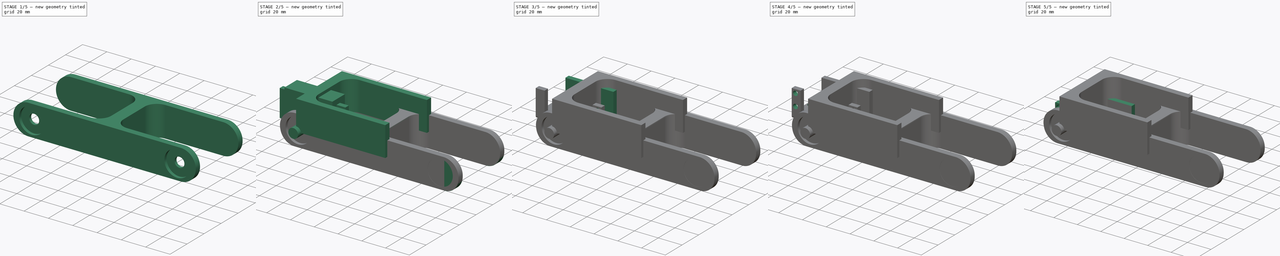
[diagram: build sequence overview — one tinted view per stage of 5, left to right]
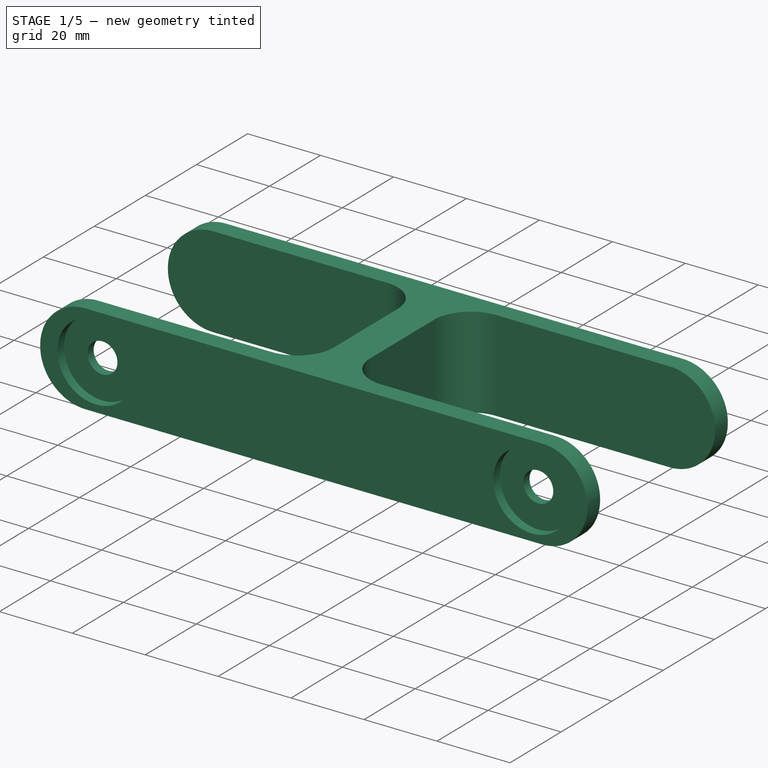
[diagram: stage 1 of 5 — iso view after this stage's code; geometry added in this stage tinted green]
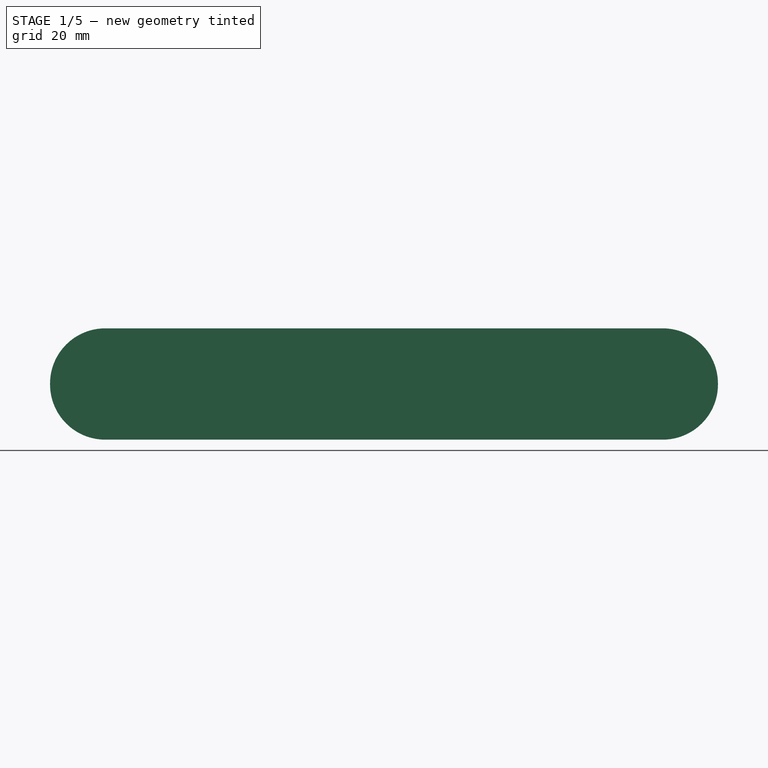
[diagram: stage 1 of 5 — front view after this stage's code; geometry added in this stage tinted green]
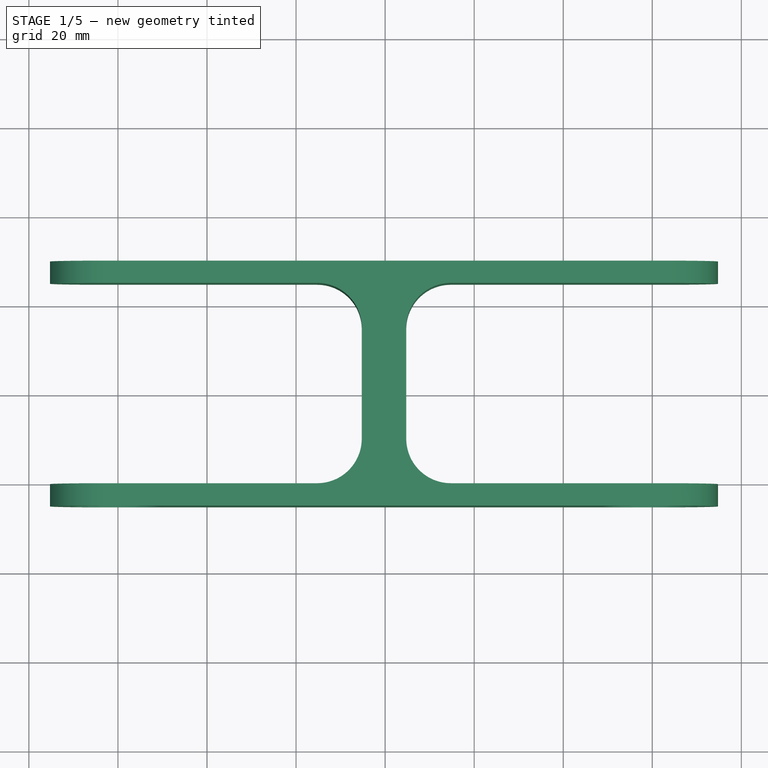
[diagram: stage 1 of 5 — top view after this stage's code; geometry added in this stage tinted green]
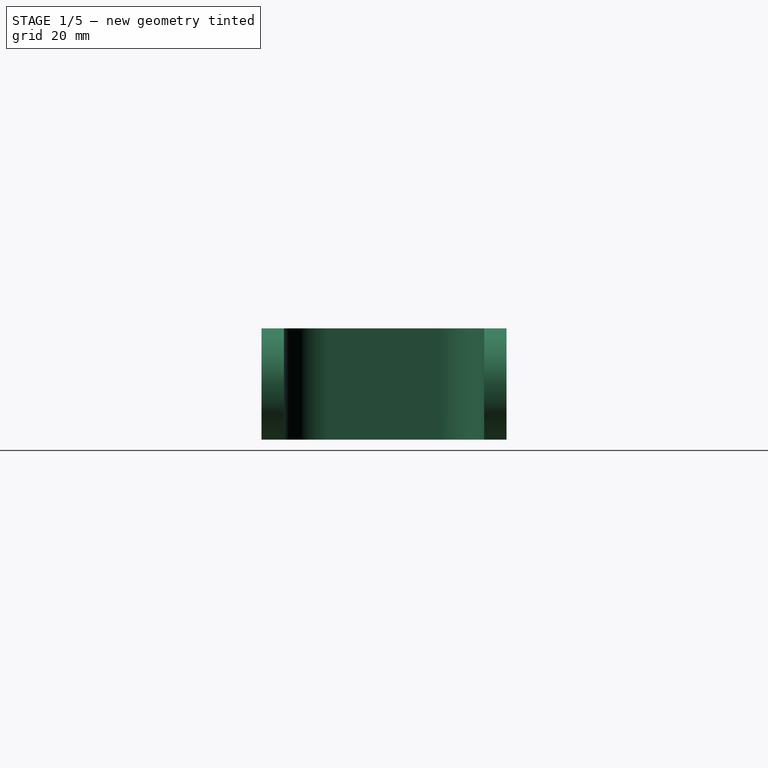
[diagram: stage 1 of 5 — right view after this stage's code; geometry added in this stage tinted green]
FCSTD DOCUMENT  (FreeCAD 0.16R6706 (Git))
Label: soporte1
License: CreativeCommons Attribution-ShareAlike
LicenseURL: http://creativecommons.org/licenses/by-sa/4.0/
objects: Part::Cut×12, Part::Cylinder×12, Part::Feature×7, Part::Fillet×6, Sketcher::SketchObject×5, PartDesign::Pad×5, Part::MultiFuse×4, Part::Part2DObjectPython×2, Part::Box×1, App::FeaturePython×1, Part::Mirroring×1
note: 60 computed .brp shape members not serialized (recipe doc carries the construction recipe); baked Part::Feature solids carry a one-line shape summary decoded from their .brp

FEATURE [Part::Feature] Cut023001  label="pieza1v002"
  Placement = pos=(-30,-3,0) rot=(0,0,1;0rad)
  shape: bbox 55.26 x 29 x 23 mm, 31 faces (baked)
FEATURE [Part::Feature] Cut023002  label="Futaba-3003-body-base002"
  Placement = pos=(-30,14,10) rot=(0,0.707107,-0.707107;3.14159rad)
  shape: bbox 55.26 x 40.28 x 20 mm, 242 faces (baked)
FEATURE [Part::Feature] Fillet006  label="Horm-round1"
  Placement = pos=(-40.1,-22.6,10) rot=(1,0,0;3.14159rad)
  shape: bbox 21 x 6.2 x 21 mm, 65 faces (baked)
FEATURE [Part::Feature] Fillet007  label="Horm-round2"
  Placement = pos=(0,-19,0) rot=(1,0,0;3.14159rad)
  shape: bbox 21 x 6.2 x 21 mm, 65 faces (baked)
FEATURE [Part::Cylinder] Cylinder016  label="Cilindro016"
  Angle = 360
  Height = 10
  Placement = pos=(0,-22.5,0) rot=(1,0,0;1.5708rad)
  Radius = 10.55
FEATURE [Part::Cylinder] Cylinder018  label="Cilindro018"
  Angle = 360
  Height = 10
  Placement = pos=(0,-14,0) rot=(1,0,0;1.5708rad)
  Radius = 4.1
FEATURE [Part::Part2DObjectPython] Line  # Draft 2D object (typed FeaturePython)
  ChamferSize = 0
  Closed = false
  End = (59.8418,-25.0022,12.0661)
  FilletRadius = 0
  Length = 55
  MakeFace = true
  Points = (2) [(59.8418,29.9978,12.0661),(59.8418,-25.0022,12.0661)]
  Start = (59.8418,29.9978,12.0661)
  Subdivisions = 0
FEATURE [Part::Part2DObjectPython] Line001  # Draft 2D object (typed FeaturePython)
  ChamferSize = 0
  Closed = false
  End = (59.8418,29.9978,-12.9339)
  FilletRadius = 0
  Length = 25
  MakeFace = true
  Points = (2) [(59.8418,29.9978,12.0661),(59.8418,29.9978,-12.9339)]
  Start = (59.8418,29.9978,12.0661)
  Subdivisions = 0
FEATURE [App::FeaturePython] Dimension  # Draft dimension (typed FeaturePython)
  Dimline = (57.5705,29.9978,33.8714)
  Direction = (0,0,0)
  Distance = 59.9771
  End = (59.8418,29.9978,-0.433897)
  Normal = (0,1,0)
  Start = (0,34,0)
FEATURE [Sketcher::SketchObject] Sketch005
  Placement = pos=(0,0,12.5) rot=(0,1,0;3.14159rad)
  sketch-geometry (10):
    g0: LineSegment StartX=-59.7494 StartY=29.9083 StartZ=0 EndX=-59.7494 EndY=-25.0917 EndZ=0
    g1: LineSegment StartX=-59.7494 StartY=-25.0917 StartZ=0 EndX=15.2506 EndY=-25.0917 EndZ=0
    g2: LineSegment StartX=15.2506 StartY=-25.0917 StartZ=0 EndX=15.2506 EndY=-20.0917 EndZ=0
    g3: LineSegment StartX=15.2506 StartY=-20.0917 StartZ=0 EndX=-44.7494 EndY=-20.0917 EndZ=0
    g4: LineSegment StartX=-54.7494 StartY=-10.0917 StartZ=0 EndX=-54.7494 EndY=14.9083 EndZ=0
    g5: LineSegment StartX=-44.7494 StartY=24.9083 StartZ=0 EndX=15.2506 EndY=24.9083 EndZ=0
    g6: LineSegment StartX=15.2506 StartY=24.9083 StartZ=0 EndX=15.2506 EndY=29.9083 EndZ=0
    g7: LineSegment StartX=15.2506 StartY=29.9083 StartZ=0 EndX=-59.7494 EndY=29.9083 EndZ=0
    g8: ArcOfCircle CenterX=-44.7494 CenterY=14.9083 CenterZ=0 NormalX=0 NormalY=0 NormalZ=1 Radius=10 StartAngle=1.5708 EndAngle=3.14159
    g9: ArcOfCircle CenterX=-44.7494 CenterY=-10.0917 CenterZ=0 NormalX=0 NormalY=0 NormalZ=1 Radius=10 StartAngle=3.14159 EndAngle=4.71239
  constraints (27):
    c: Vertical(g0)
    c: Coincident(g0,g1)
    c: Horizontal(g1)
    c: Coincident(g1,g2)
    c: Vertical(g2)
    c: Coincident(g2,g3)
    c: Horizontal(g3)
    c: Vertical(g4)
    c: Horizontal(g5)
    c: Coincident(g5,g6)
    c: Vertical(g6)
    c: Coincident(g6,g7)
    c: Coincident(g7,g0)
    c: Horizontal(g7)
    c: Equal(g7,g1)
    c: Equal(g6,g2)
    c: DistanceY(g6,g6) = 5
    c: DistanceX(g7,g7) = 75
    c: Tangent(g4,g8) = 1.5708
    c: Tangent(g5,g8) = 1.5708
    c: Tangent(g4,g9) = 1.5708
    c: Tangent(g3,g9) = 1.5708
    c: DistanceY(g2,g5) = 45
    c: Equal(g8,g9)
    c: Radius(g8) = 10
    c: DistanceX(g0,g4) = 5
    c: DistanceY(g0,g-1) = 25.0917
FEATURE [Part::MultiFuse] Fusion002  label="Taladro-horm001"
  Shapes = -> [Cylinder016,Cylinder018]
FEATURE [PartDesign::Pad] Pad005
  Length = 25
  Length2 = 100
  Placement = pos=(0,0,12.5) rot=(0,1,0;3.14159rad)
  Sketch = -> Sketch005
  Type = 0
FEATURE [Part::Fillet] Fillet008
  Base = -> Pad005
  Edges = 4 edges r=12.4: [Edge6,Edge7,Edge18,Edge19]
FEATURE [Part::Cut] Cut023004
  Base = -> Fillet008
  Tool = -> Fusion002
FEATURE [Part::Feature] Cut023004001  label="Cut023005"
  shape: bbox 75 x 55 x 25 mm, 19 faces (baked)
FEATURE [Part::Mirroring] Part__Mirroring  label="Cut023005 (Mirror #1)"
  Base = (0,2.41,0)
  Normal = (1,0,-1.19209e-07)
  Placement = pos=(119.5,0,0) rot=(0,0,1;0rad)
  Source = -> Cut023004001
FEATURE [Part::MultiFuse] Fusion003
  Shapes = -> [Cut023004001,Part__Mirroring]
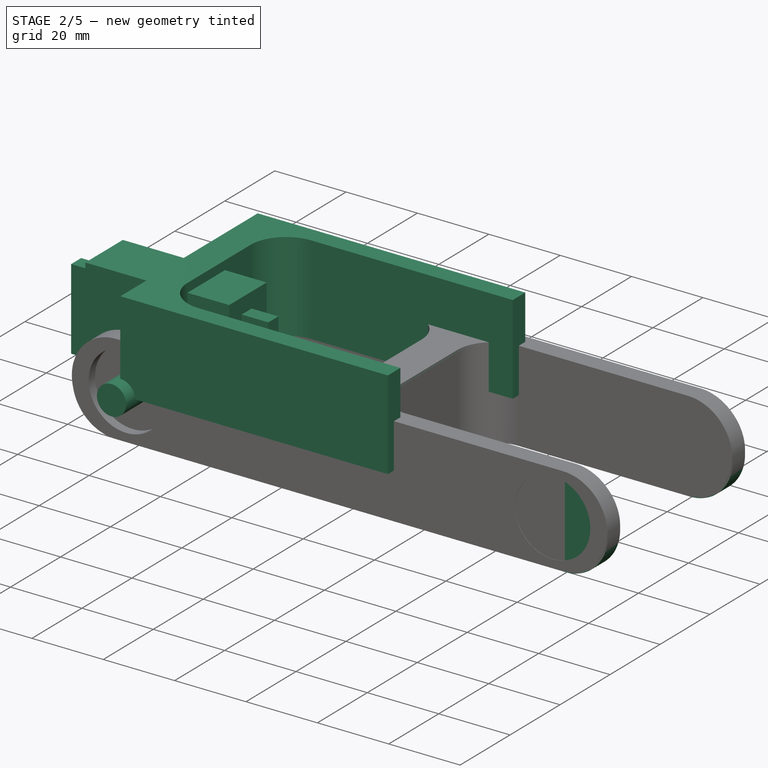
[diagram: stage 2 of 5 — iso view after this stage's code; geometry added in this stage tinted green]
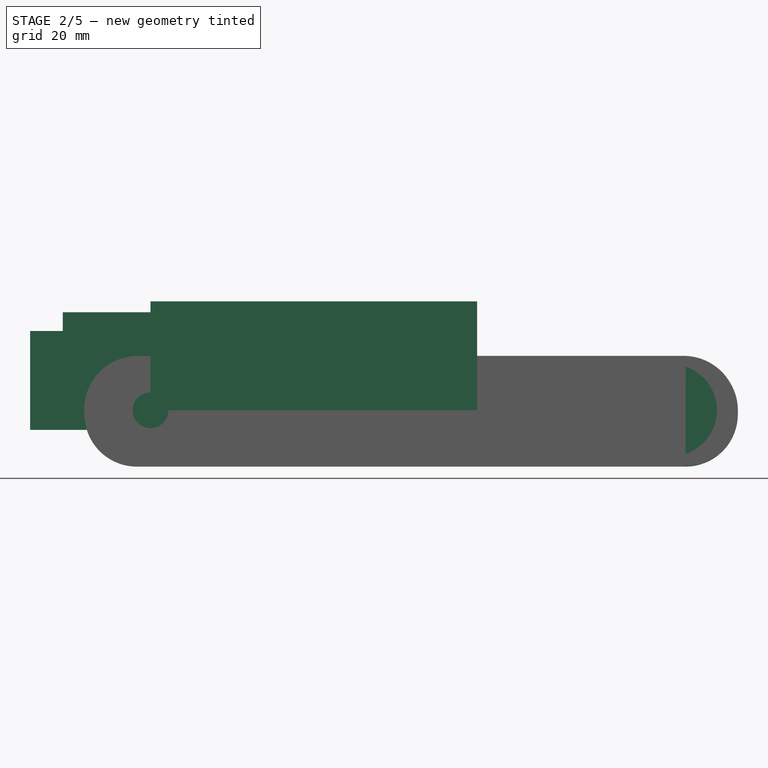
[diagram: stage 2 of 5 — front view after this stage's code; geometry added in this stage tinted green]
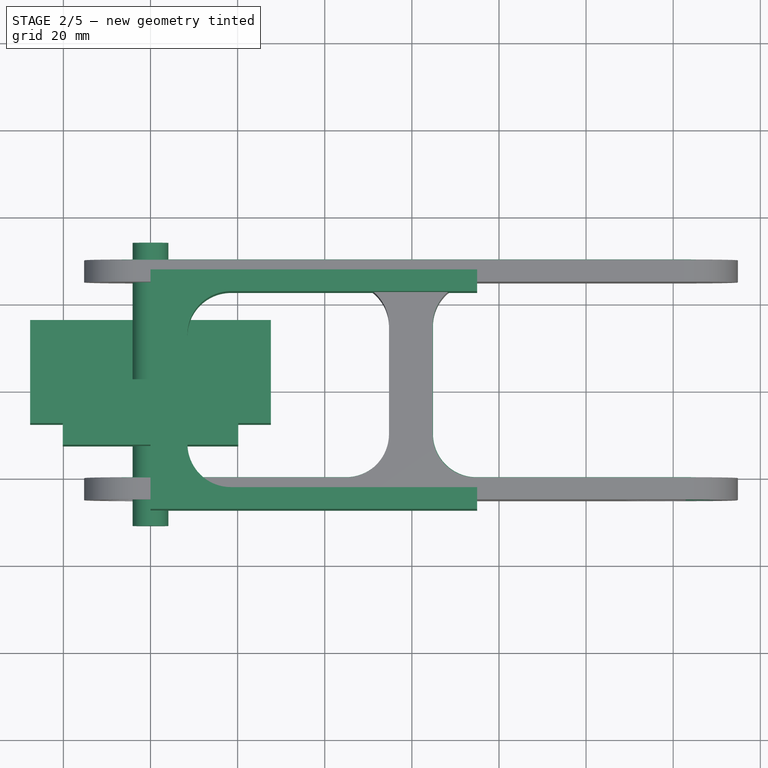
[diagram: stage 2 of 5 — top view after this stage's code; geometry added in this stage tinted green]
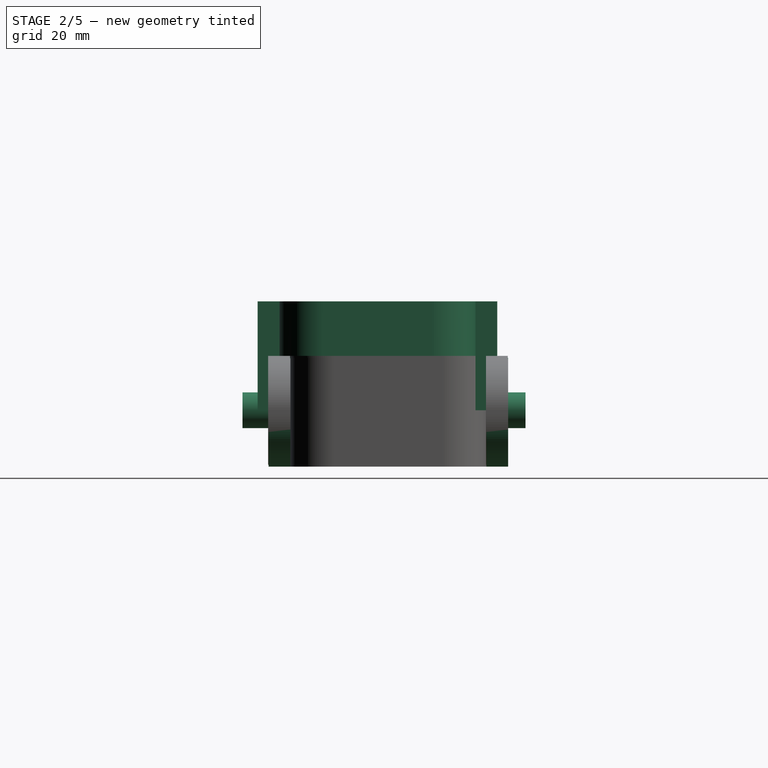
[diagram: stage 2 of 5 — right view after this stage's code; geometry added in this stage tinted green]
FEATURE [Sketcher::SketchObject] Sketch003
  Placement = pos=(-27.63,0,0) rot=(0.57735,0.57735,0.57735;2.0944rad)
  sketch-geometry (6):
    g0: LineSegment StartX=-7.7 StartY=-4.5 StartZ=0 EndX=16.3 EndY=-4.5 EndZ=0
    g1: LineSegment StartX=16.3 StartY=-4.5 StartZ=0 EndX=16.3 EndY=-0.5 EndZ=0
    g2: LineSegment StartX=16.3 StartY=-0.5 StartZ=0 EndX=-3.7 EndY=-0.5 EndZ=0
    g3: LineSegment StartX=-3.7 StartY=-0.5 StartZ=0 EndX=-3.7 EndY=18.2 EndZ=0
    g4: LineSegment StartX=-3.7 StartY=18.2 StartZ=0 EndX=-7.7 EndY=18.2 EndZ=0
    g5: LineSegment StartX=-7.7 StartY=18.2 StartZ=0 EndX=-7.7 EndY=-4.5 EndZ=0
  constraints (18):
    c: Coincident(g0,g1)
    c: Coincident(g1,g2)
    c: Coincident(g2,g3)
    c: Coincident(g3,g4)
    c: Coincident(g4,g5)
    c: Coincident(g5,g0)
    c: Horizontal(g0)
    c: Horizontal(g2)
    c: Horizontal(g4)
    c: Vertical(g5)
    c: Vertical(g3)
    c: Vertical(g1)
    c: Equal(g4,g1)
    c: DistanceX(g4,g4) = 4
    c: DistanceX(g0,g-1) = 7.7
    c: DistanceY(g1,g-1) = 0.5
    c: DistanceY(g5,g5) = 22.7
    c: DistanceX(g0,g0) = 24
FEATURE [PartDesign::Pad] Pad003
  Length = 55.26
  Length2 = 100
  Placement = pos=(-27.63,0,0) rot=(0.57735,0.57735,0.57735;2.0944rad)
  Sketch = -> Sketch003
  Type = 0
FEATURE [Part::Box] Box  label="Cubo"
  Height = 25
  Length = 40.3
  Placement = pos=(-20.15,-12.7,-2.5) rot=(0,0,1;0rad)
  Width = 15
FEATURE [Sketcher::SketchObject] Sketch
  sketch-geometry (17):
    g0: LineSegment StartX=-25 StartY=-30 StartZ=0 EndX=-25 EndY=-25 EndZ=0
    g1: LineSegment StartX=-25 StartY=-25 StartZ=0 EndX=35 EndY=-25 EndZ=0
    g2: LineSegment StartX=45 StartY=-15 StartZ=0 EndX=45 EndY=10 EndZ=0
    g3: LineSegment StartX=35 StartY=20 StartZ=0 EndX=-25 EndY=20 EndZ=0
    g4: LineSegment StartX=-25 StartY=20 StartZ=0 EndX=-25 EndY=25 EndZ=0
    g5: LineSegment StartX=-25 StartY=25 StartZ=0 EndX=125 EndY=25 EndZ=0
    g6: LineSegment StartX=125 StartY=25 StartZ=0 EndX=125 EndY=20 EndZ=0
    g7: LineSegment StartX=125 StartY=20 StartZ=0 EndX=65 EndY=20 EndZ=0
    g8: LineSegment StartX=55 StartY=10 StartZ=0 EndX=55 EndY=-15 EndZ=0
    g9: LineSegment StartX=65 StartY=-25 StartZ=0 EndX=125 EndY=-25 EndZ=0
    g10: LineSegment StartX=125 StartY=-25 StartZ=0 EndX=125 EndY=-30 EndZ=0
    g11: LineSegment StartX=125 StartY=-30 StartZ=0 EndX=-25 EndY=-30 EndZ=0
    g12: LineSegment [constr] StartX=50 StartY=25 StartZ=0 EndX=50 EndY=-30 EndZ=0
    g13: ArcOfCircle CenterX=35 CenterY=10 CenterZ=0 NormalX=0 NormalY=0 NormalZ=1 Radius=10 StartAngle=0 EndAngle=1.5708
    g14: ArcOfCircle CenterX=65 CenterY=10 CenterZ=0 NormalX=0 NormalY=0 NormalZ=1 Radius=10 StartAngle=1.5708 EndAngle=3.14159
    g15: ArcOfCircle CenterX=35 CenterY=-15 CenterZ=0 NormalX=0 NormalY=0 NormalZ=1 Radius=10 StartAngle=4.71239 EndAngle=6.28319
    g16: ArcOfCircle CenterX=65 CenterY=-15 CenterZ=0 NormalX=0 NormalY=0 NormalZ=1 Radius=10 StartAngle=3.14159 EndAngle=4.71239
  constraints (48):
    c: Coincident(g0,g1)
    c: Coincident(g3,g4)
    c: Coincident(g4,g5)
    c: Coincident(g5,g6)
    c: Coincident(g6,g7)
    c: Coincident(g9,g10)
    c: Coincident(g10,g11)
    c: Coincident(g11,g0)
    c: Horizontal(g9)
    c: Horizontal(g1)
    c: Horizontal(g7)
    c: Horizontal(g5)
    c: Horizontal(g3)
    c: Horizontal(g11)
    c: Vertical(g4)
    c: Vertical(g2)
    c: Vertical(g8)
    c: Vertical(g6)
    c: Vertical(g10)
    c: Vertical(g0)
    c: Equal(g1,g3)
    c: Equal(g3,g7)
    c: Equal(g7,g9)
    c: Equal(g4,g6)
    c: Equal(g6,g10)
    c: Equal(g10,g0)
    c: DistanceX(g5,g5) = 150
    c: DistanceY(g0,g0) = 5
    c: DistanceX(g3,g-1) = 25
    c: DistanceY(g-1,g3) = 20
    c: Vertical(g12)
    c: DistanceX(g12,g5) = 75
    c: Tangent(g3,g13) = -1.5708
    c: Tangent(g2,g13) = -1.5708
    c: Tangent(g8,g14) = -1.5708
    c: Tangent(g7,g14) = -1.5708
    c: Tangent(g1,g15) = -1.5708
    c: Tangent(g2,g15) = -1.5708
    c: Tangent(g8,g16) = -1.5708
    c: Tangent(g9,g16) = -1.5708
    c: Equal(g13,g14)
    c: Equal(g14,g15)
    c: Equal(g15,g16)
    c: DistanceX(g2,g8) = 10
    c: Radius(g13) = 10
    c: DistanceY(g0,g3) = 45
    c: PointOnObject(g12,g11)
    c: PointOnObject(g12,g5)
FEATURE [PartDesign::Pad] Pad
  Length = 25
  Length2 = 100
  Sketch = -> Sketch
  Type = 0
FEATURE [Part::Fillet] Fillet004  label="pieza2v1"
  Base = -> Pad
  Edges = 8 edges r=12: [Edge3,Edge4,Edge21,Edge22,Edge27,Edge28,Edge45,Edge46]
  Placement = pos=(9.84181,4.99779,-12.9339) rot=(0,0,1;0rad)
FEATURE [PartDesign::Pad] Pad004
  Length = 25
  Length2 = 100
  Sketch = -> Sketch004
  Type = 0
FEATURE [Part::MultiFuse] Fusion001  label="Taladro-horm"
  Shapes = -> [Cylinder016,Cylinder018]
FEATURE [Part::Cut] Cut023003
  Base = -> Fillet004
  Tool = -> Fusion001
FEATURE [Part::Cylinder] Cylinder019  label="Cilindro019"
  Angle = 360
  Height = 65
  Placement = pos=(0,34,0) rot=(1,0,0;1.5708rad)
  Radius = 4.1
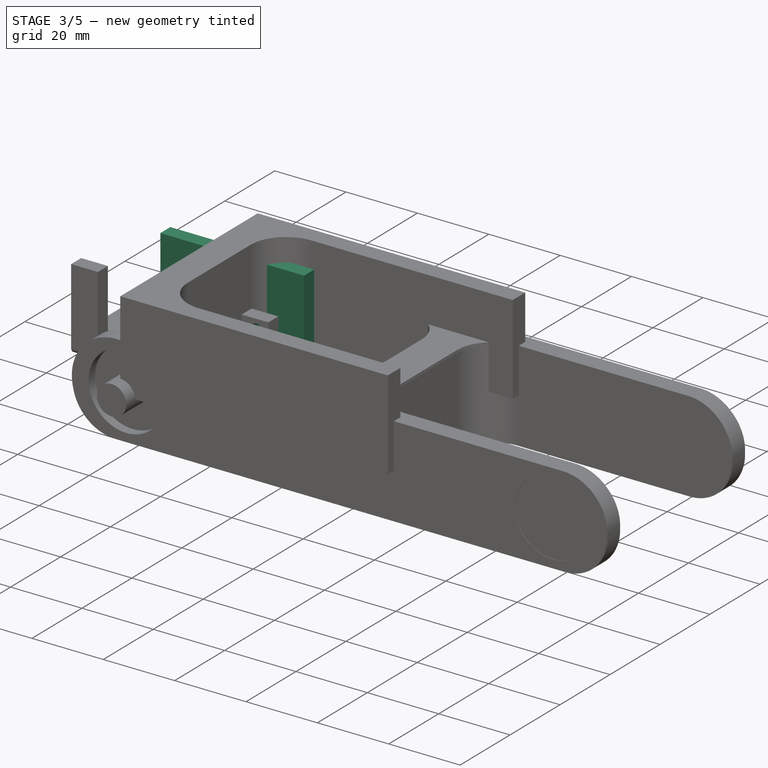
[diagram: stage 3 of 5 — iso view after this stage's code; geometry added in this stage tinted green]
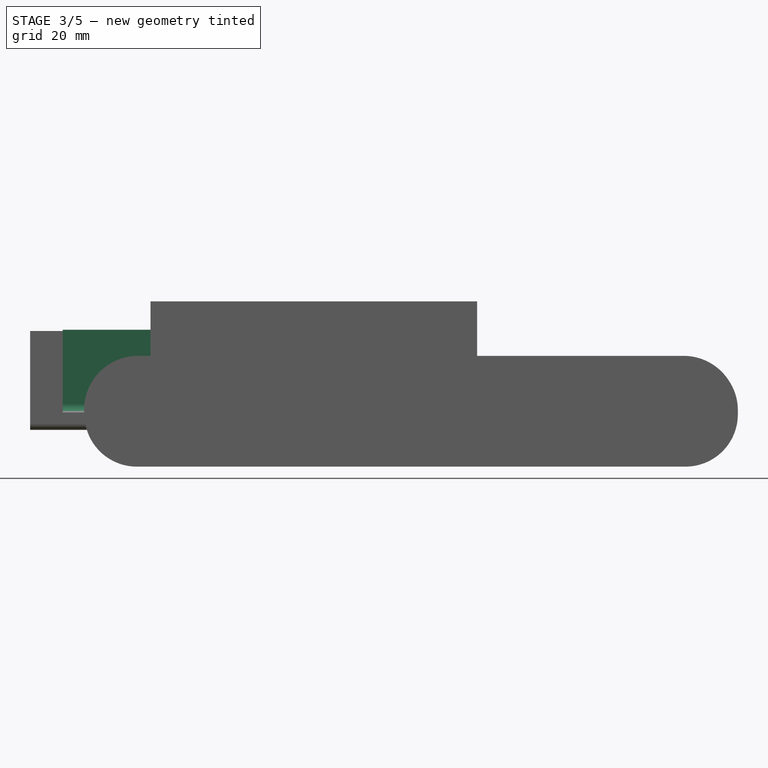
[diagram: stage 3 of 5 — front view after this stage's code; geometry added in this stage tinted green]
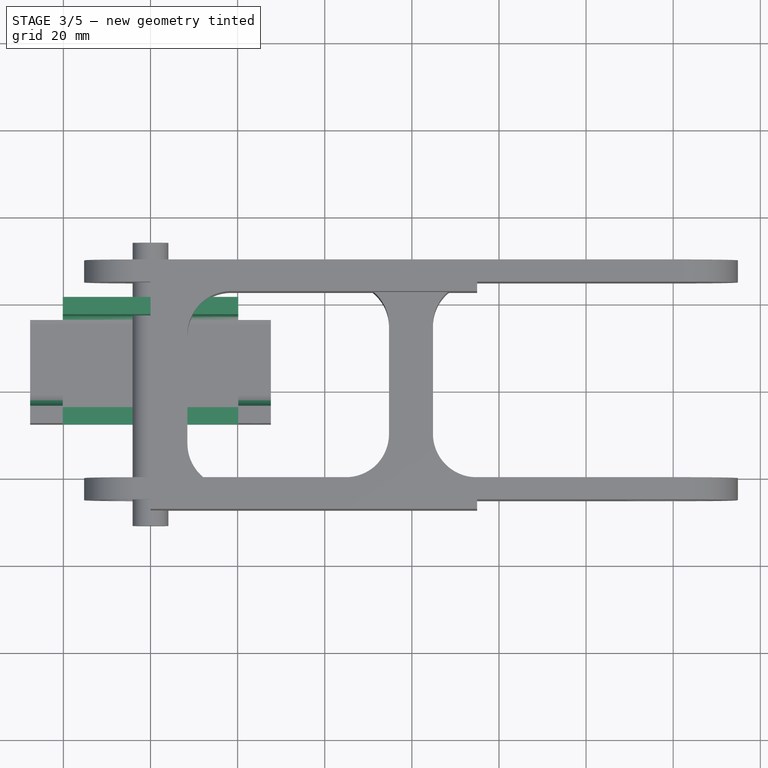
[diagram: stage 3 of 5 — top view after this stage's code; geometry added in this stage tinted green]
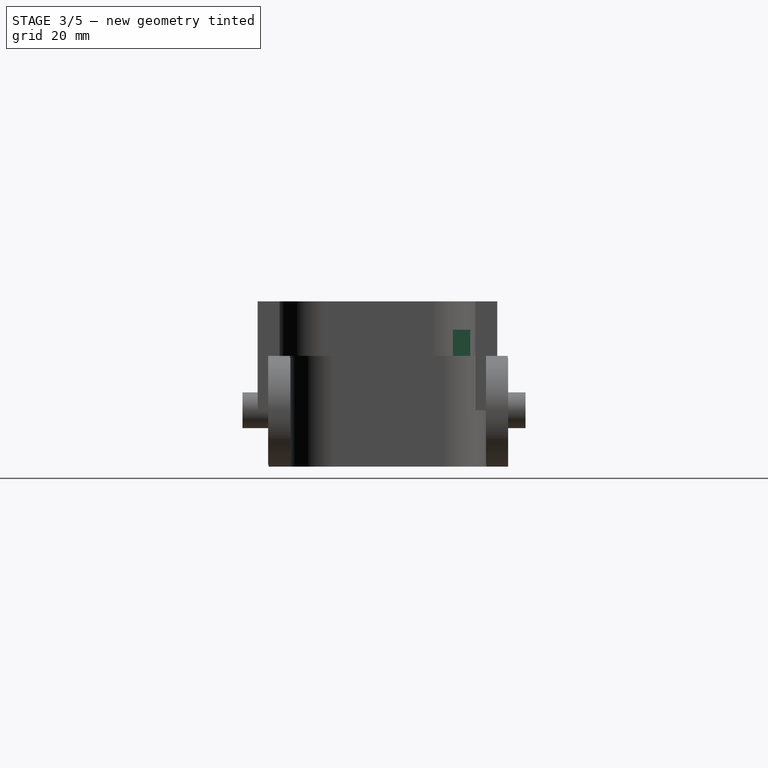
[diagram: stage 3 of 5 — right view after this stage's code; geometry added in this stage tinted green]
FEATURE [Part::Feature] Cut004  label="Futaba-3003-body-base"
  Placement = pos=(10.1,16.95,0) rot=(0,0.707107,-0.707107;3.14159rad)
  shape: bbox 55.26 x 40.28 x 20 mm, 242 faces (baked)
FEATURE [Sketcher::SketchObject] Sketch002
  Placement = pos=(-20.15,0,0) rot=(0.57735,0.57735,0.57735;2.0944rad)
  sketch-geometry (6):
    g0: LineSegment StartX=17.3 StartY=18.5 StartZ=0 EndX=21.3 EndY=18.5 EndZ=0
    g1: LineSegment StartX=21.3 StartY=18.5 StartZ=0 EndX=21.3 EndY=-4.5 EndZ=0
    g2: LineSegment StartX=21.3 StartY=-4.5 StartZ=0 EndX=-7.7 EndY=-4.5 EndZ=0
    g3: LineSegment StartX=-7.7 StartY=-4.5 StartZ=0 EndX=-7.7 EndY=-0.5 EndZ=0
    g4: LineSegment StartX=-7.7 StartY=-0.5 StartZ=0 EndX=17.3 EndY=-0.5 EndZ=0
    g5: LineSegment StartX=17.3 StartY=-0.5 StartZ=0 EndX=17.3 EndY=18.5 EndZ=0
  constraints (18):
    c: Coincident(g0,g1)
    c: Coincident(g1,g2)
    c: Coincident(g2,g3)
    c: Coincident(g3,g4)
    c: Coincident(g4,g5)
    c: Coincident(g5,g0)
    c: Horizontal(g0)
    c: Horizontal(g4)
    c: Horizontal(g2)
    c: Vertical(g5)
    c: Vertical(g1)
    c: Vertical(g3)
    c: DistanceX(g0,g0) = 4
    c: DistanceX(g2,g2) = 29
    c: DistanceY(g1,g1) = 23
    c: Equal(g0,g3)
    c: DistanceX(g3,g-1) = 7.7
    c: DistanceY(g4,g-1) = 0.5
FEATURE [PartDesign::Pad] Pad002
  Length = 40.3
  Length2 = 100
  Placement = pos=(-20.15,0,0) rot=(0.57735,0.57735,0.57735;2.0944rad)
  Sketch = -> Sketch002
  Type = 0
FEATURE [Part::Cut] Cut
  Base = -> Pad003
  Tool = -> Box
FEATURE [Part::MultiFuse] Fusion
  Shapes = -> [Cut,Pad002]
FEATURE [Part::Feature] Cut005  label="Futaba-3003-body-base001"
  Placement = pos=(0,5,-25) rot=(0,0,1;3.14159rad)
  shape: bbox 55.26 x 20 x 40.28 mm, 242 faces (baked)
FEATURE [Part::Fillet] Fillet
  Base = -> Fusion
  Edges = 2 edges r=3: [Edge35,Edge40]
FEATURE [Part::Fillet] Fillet001
  Base = -> Fillet
  Edges = 1 edges r=1.5: [Edge32]
FEATURE [Part::Fillet] Fillet002
  Base = -> Fillet001
  Edges = 1 edges r=2: [Edge30]
FEATURE [Part::Cylinder] Cylinder  label="Cilindro"
  Angle = 360
  Height = 15
  Placement = pos=(24.48,4.65,15.01) rot=(1,0,0;1.5708rad)
  Radius = 2
FEATURE [Part::Fillet] Fillet005
  Base = -> Fillet002
  Edges = 1 edges r=5: [Edge23]
FEATURE [Part::Cut] Cut015
  Base = -> Fillet005
  Tool = -> Cylinder
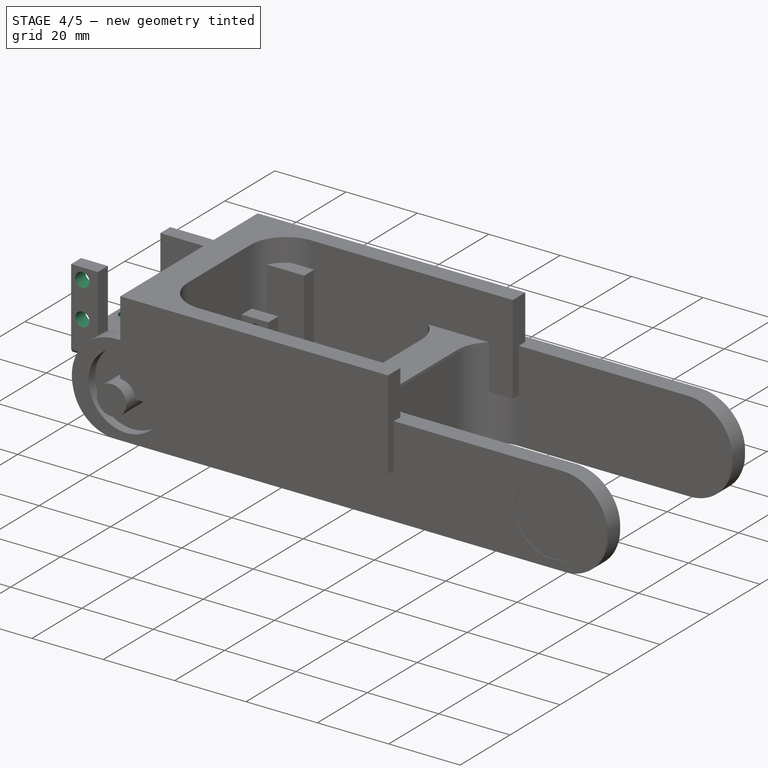
[diagram: stage 4 of 5 — iso view after this stage's code; geometry added in this stage tinted green]
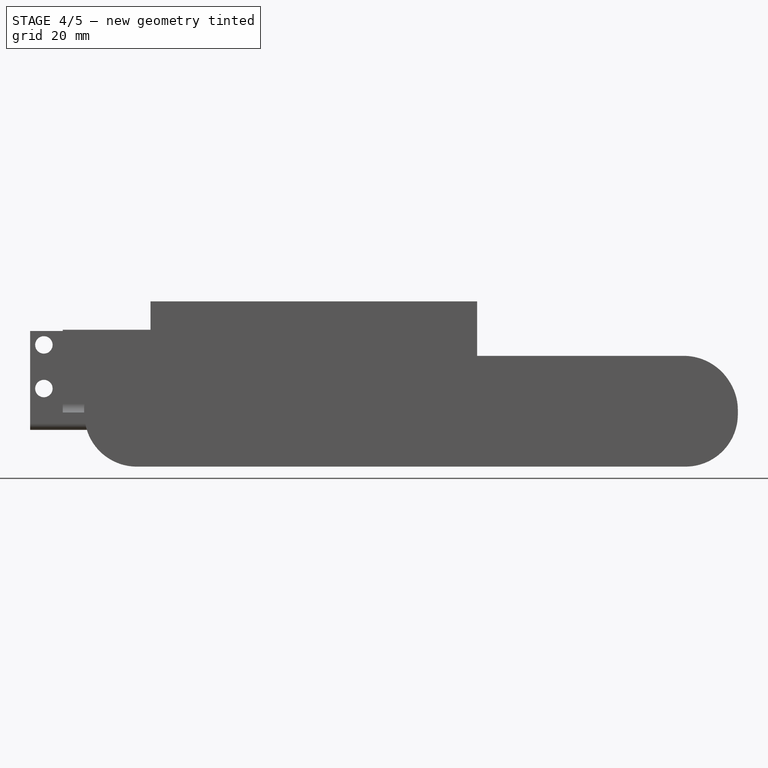
[diagram: stage 4 of 5 — front view after this stage's code; geometry added in this stage tinted green]
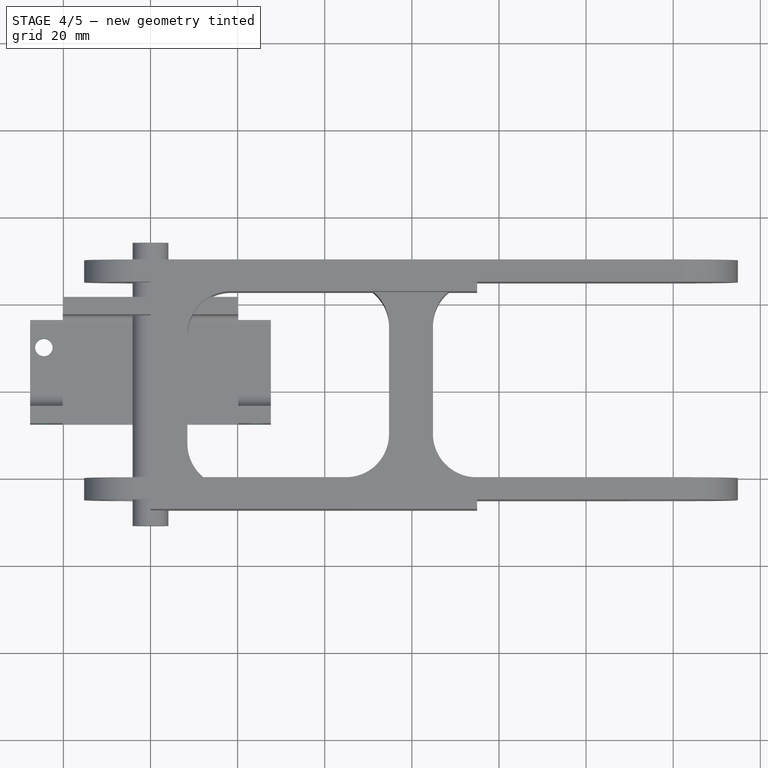
[diagram: stage 4 of 5 — top view after this stage's code; geometry added in this stage tinted green]
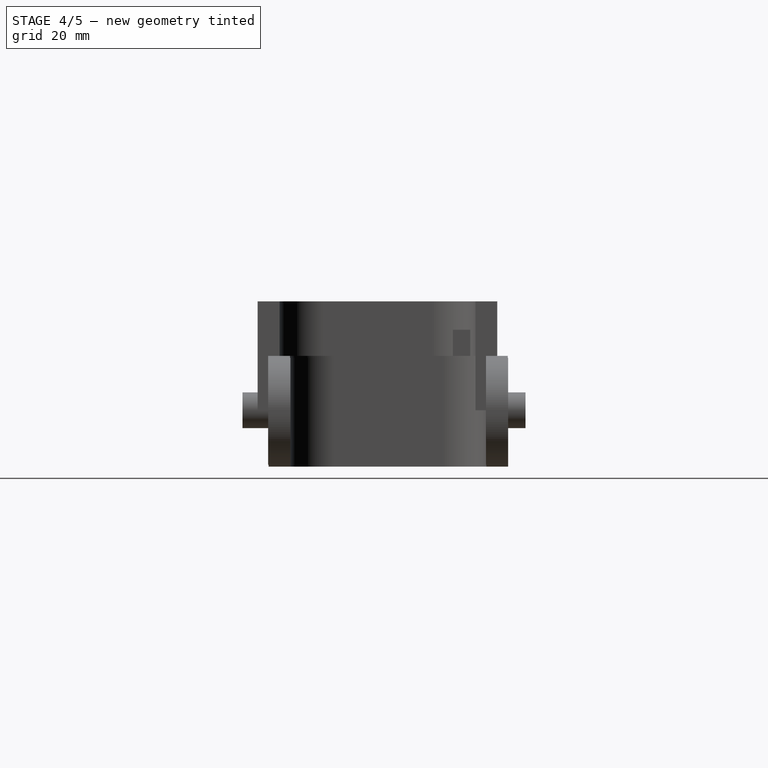
[diagram: stage 4 of 5 — right view after this stage's code; geometry added in this stage tinted green]
FEATURE [Part::Cylinder] Cylinder001  label="Cilindro001"
  Angle = 360
  Height = 15
  Placement = pos=(24.48,4.65,4.99) rot=(1,0,0;1.5708rad)
  Radius = 2
FEATURE [Part::Cylinder] Cylinder002  label="Cilindro002"
  Angle = 360
  Height = 15
  Placement = pos=(-24.48,4.65,15.01) rot=(1,0,0;1.5708rad)
  Radius = 2
FEATURE [Part::Cylinder] Cylinder003  label="Cilindro003"
  Angle = 360
  Height = 15
  Placement = pos=(-24.48,4.65,4.99) rot=(1,0,0;1.5708rad)
  Radius = 2
FEATURE [Part::Cylinder] Cylinder004  label="Cilindro004"
  Angle = 360
  Height = 15
  Placement = pos=(-24.48,10.01,-12.65) rot=(0,0,1;0rad)
  Radius = 2
FEATURE [Part::Cut] Cut016
  Base = -> Cut015
  Tool = -> Cylinder001
FEATURE [Part::Cut] Cut017
  Base = -> Cut016
  Tool = -> Cylinder002
FEATURE [Part::Cut] Cut018
  Base = -> Cut017
  Tool = -> Cylinder003
FEATURE [Part::Cut] Cut019
  Base = -> Cut018
  Tool = -> Cylinder004
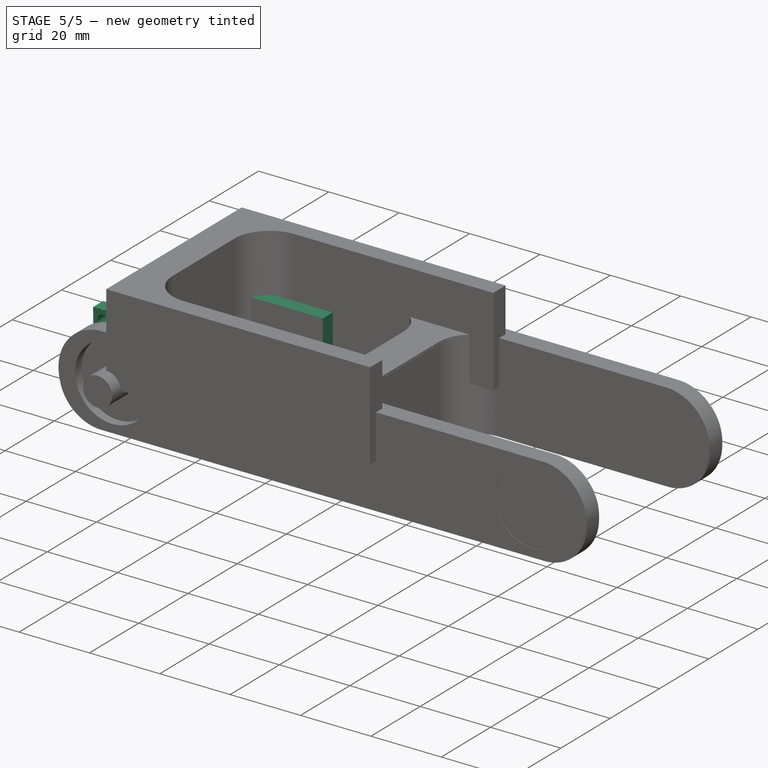
[diagram: stage 5 of 5 — iso view after this stage's code; geometry added in this stage tinted green]
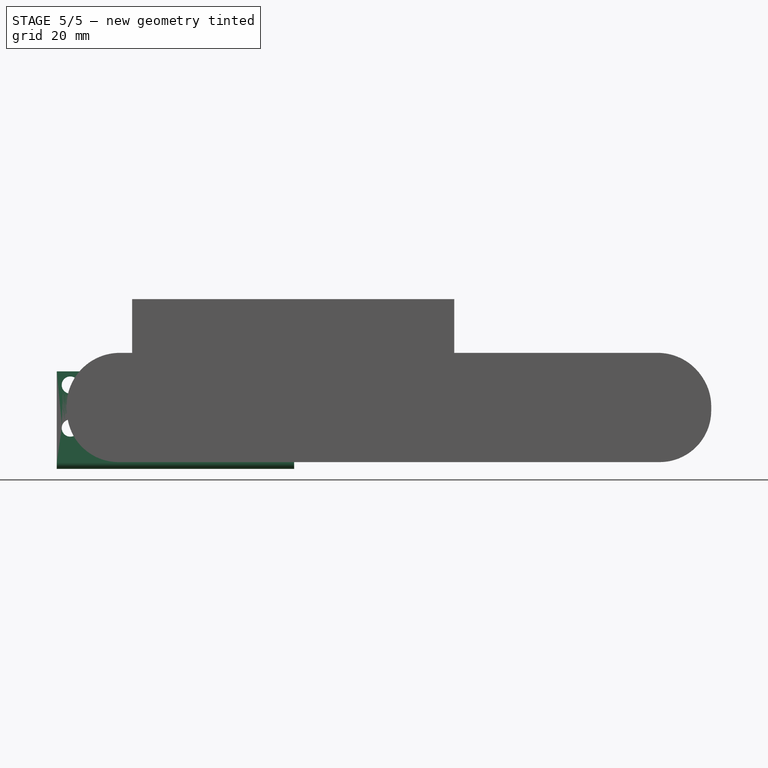
[diagram: stage 5 of 5 — front view after this stage's code; geometry added in this stage tinted green]
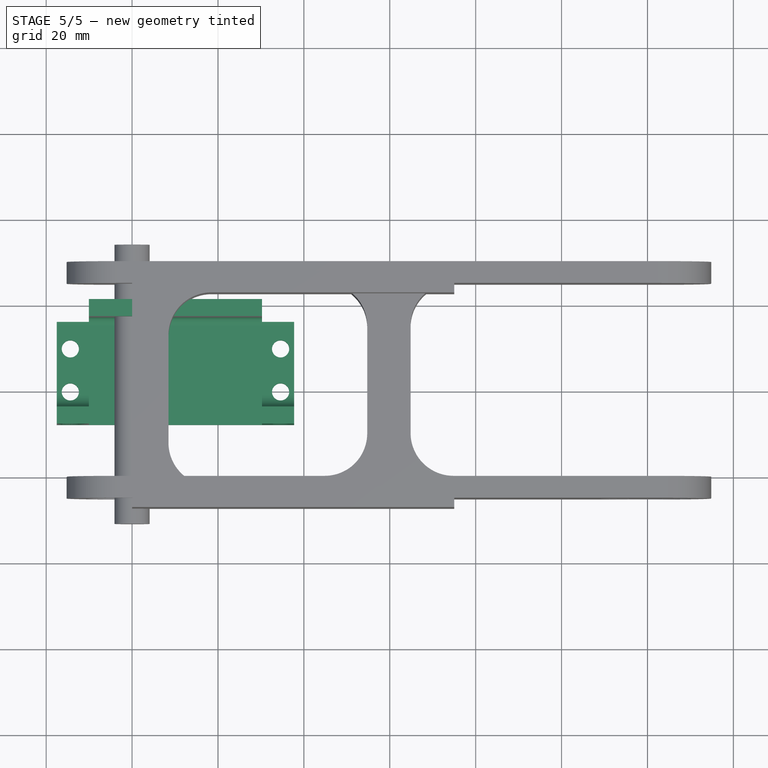
[diagram: stage 5 of 5 — top view after this stage's code; geometry added in this stage tinted green]
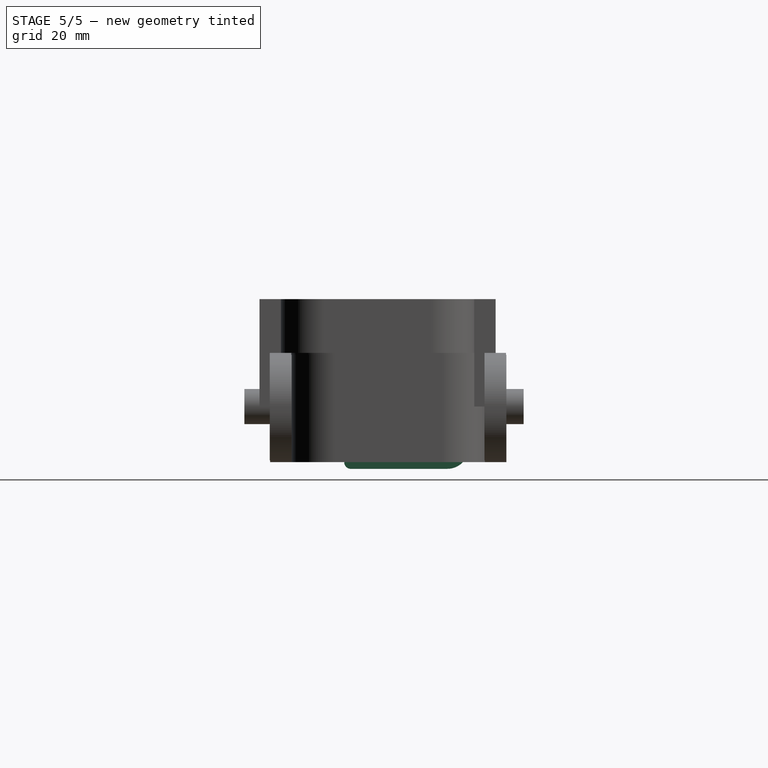
[diagram: stage 5 of 5 — right view after this stage's code; geometry added in this stage tinted green]
FEATURE [Part::Cylinder] Cylinder005  label="Cilindro005"
  Angle = 360
  Height = 15
  Placement = pos=(24.48,-0.01,-12.65) rot=(0,0,1;0rad)
  Radius = 2
FEATURE [Part::Cylinder] Cylinder006  label="Cilindro006"
  Angle = 360
  Height = 15
  Placement = pos=(-24.48,-0.01,-12.65) rot=(0,0,1;0rad)
  Radius = 2
FEATURE [Part::Cylinder] Cylinder007  label="Cilindro007"
  Angle = 360
  Height = 15
  Placement = pos=(24.48,10.01,-12.65) rot=(0,0,1;0rad)
  Radius = 2
FEATURE [Sketcher::SketchObject] Sketch004
  sketch-geometry (10):
    g0: LineSegment StartX=0 StartY=27.5 StartZ=0 EndX=75 EndY=27.5 EndZ=0
    g1: LineSegment StartX=75 StartY=27.5 StartZ=0 EndX=75 EndY=22.5 EndZ=0
    g2: LineSegment StartX=75 StartY=22.5 StartZ=0 EndX=18.472 EndY=22.5 EndZ=0
    g3: LineSegment StartX=8.47203 StartY=12.5 StartZ=0 EndX=8.47203 EndY=-12.5 EndZ=0
    g4: LineSegment StartX=18.472 StartY=-22.5 StartZ=0 EndX=75 EndY=-22.5 EndZ=0
    g5: LineSegment StartX=75 StartY=-22.5 StartZ=0 EndX=75 EndY=-27.5 EndZ=0
    g6: LineSegment StartX=75 StartY=-27.5 StartZ=0 EndX=0 EndY=-27.5 EndZ=0
    g7: LineSegment StartX=0 StartY=27.5 StartZ=0 EndX=0 EndY=-27.5 EndZ=0
    g8: ArcOfCircle CenterX=18.472 CenterY=12.5 CenterZ=0 NormalX=0 NormalY=0 NormalZ=1 Radius=10 StartAngle=1.5708 EndAngle=3.14159
    g9: ArcOfCircle CenterX=18.472 CenterY=-12.5 CenterZ=0 NormalX=0 NormalY=0 NormalZ=1 Radius=10 StartAngle=3.14159 EndAngle=4.71239
  constraints (28):
    c: Coincident(g0,g1)
    c: Coincident(g1,g2)
    c: Coincident(g4,g5)
    c: Coincident(g5,g6)
    c: Horizontal(g4)
    c: Horizontal(g2)
    c: Horizontal(g0)
    c: Horizontal(g6)
    c: Vertical(g3)
    c: Vertical(g1)
    c: Vertical(g5)
    c: Equal(g2,g4)
    c: Equal(g1,g5)
    c: Vertical(g7)
    c: Tangent(g3,g8) = -1.5708
    c: Tangent(g2,g8) = -1.5708
    c: Tangent(g3,g9) = -1.5708
    c: Tangent(g4,g9) = -1.5708
    c: Coincident(g0,g7)
    c: Coincident(g6,g7)
    c: DistanceY(g7,g7) = 55
    c: DistanceX(g6,g6) = 75
    c: DistanceY(g5,g5) = 5
    c: Equal(g8,g9)
    c: Radius(g8) = 10
    c: Equal(g0,g6)
    c: PointOnObject(g6,g-2)
    c: Symmetric(g0,g6,g-1)
FEATURE [Part::Cylinder] Cylinder015  label="Cilindro015"
  Angle = 360
  Height = 15
  Placement = pos=(-24.48,4.65,15.01) rot=(1,0,0;1.5708rad)
  Radius = 2
FEATURE [Part::Cut] Cut020
  Base = -> Cut019
  Tool = -> Cylinder005
FEATURE [Part::Cut] Cut021
  Base = -> Cut020
  Tool = -> Cylinder006
FEATURE [Part::Cut] Cut022
  Base = -> Cut021
  Tool = -> Cylinder007
FEATURE [Part::Cut] Cut023  label="pieza1v1"
  Base = -> Cut022
  Placement = pos=(10.1,-0.05,-10) rot=(0,0,1;0rad)
  Tool = -> Cylinder015
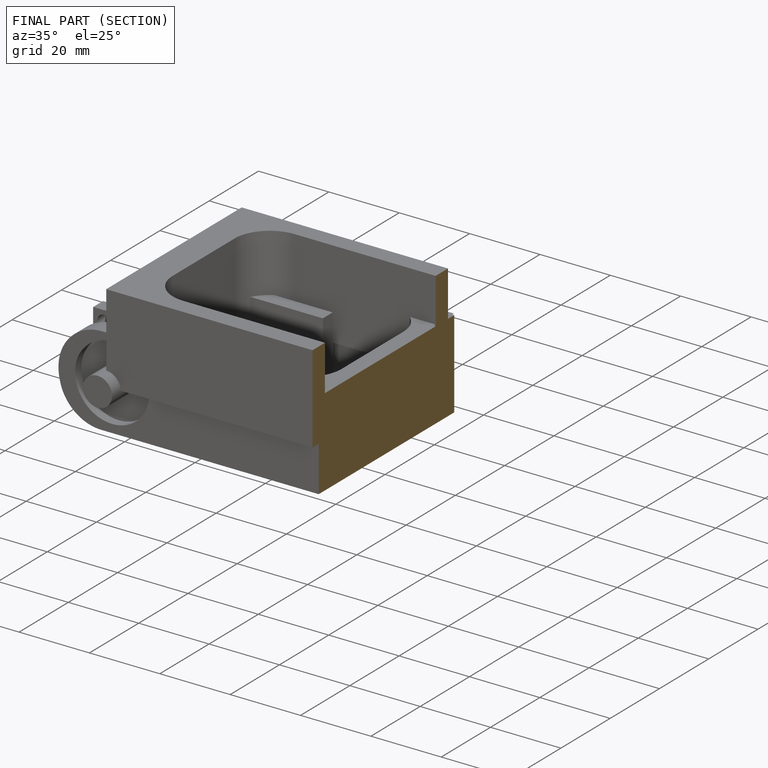
[diagram: finished part — half-section view (interior)]
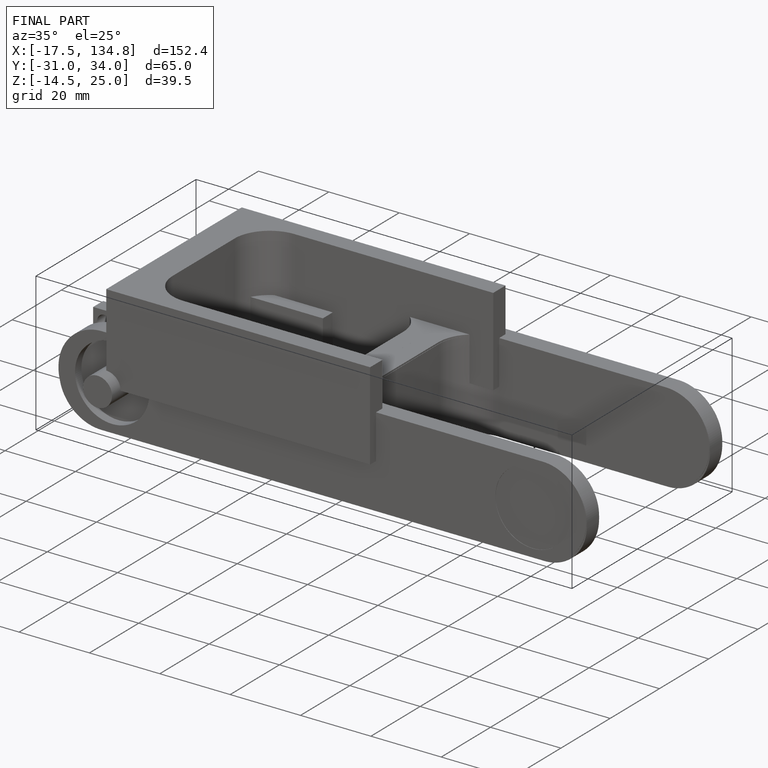
[diagram: finished part — iso view with bounding-box wireframe]
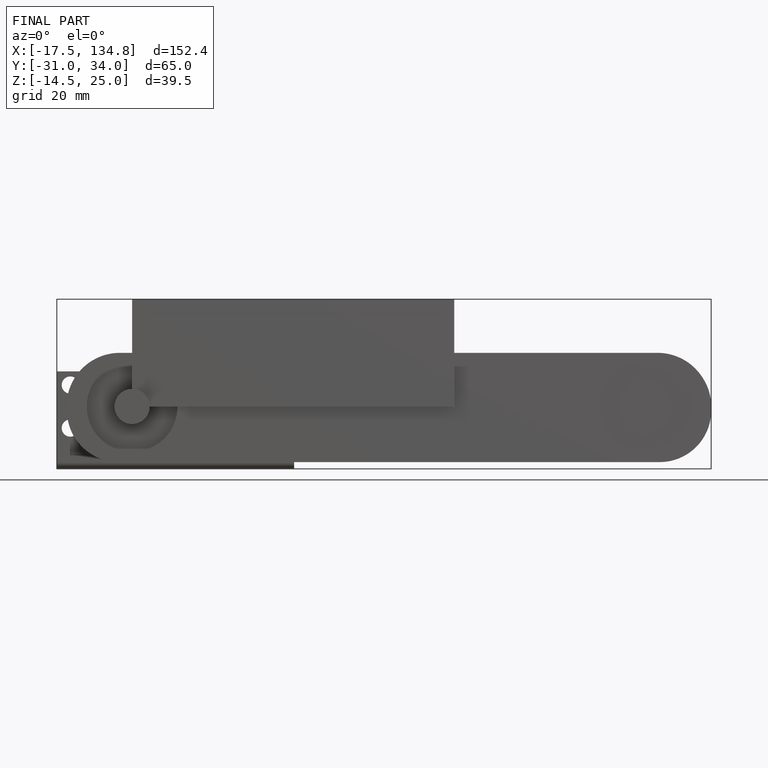
[diagram: finished part — front view with bounding-box wireframe]
